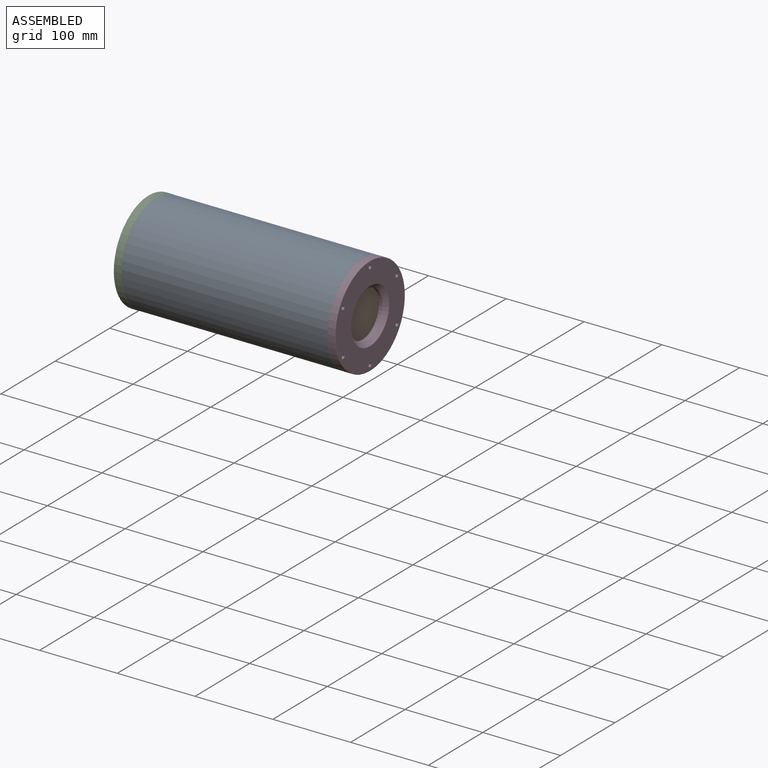
[diagram: assembled view]
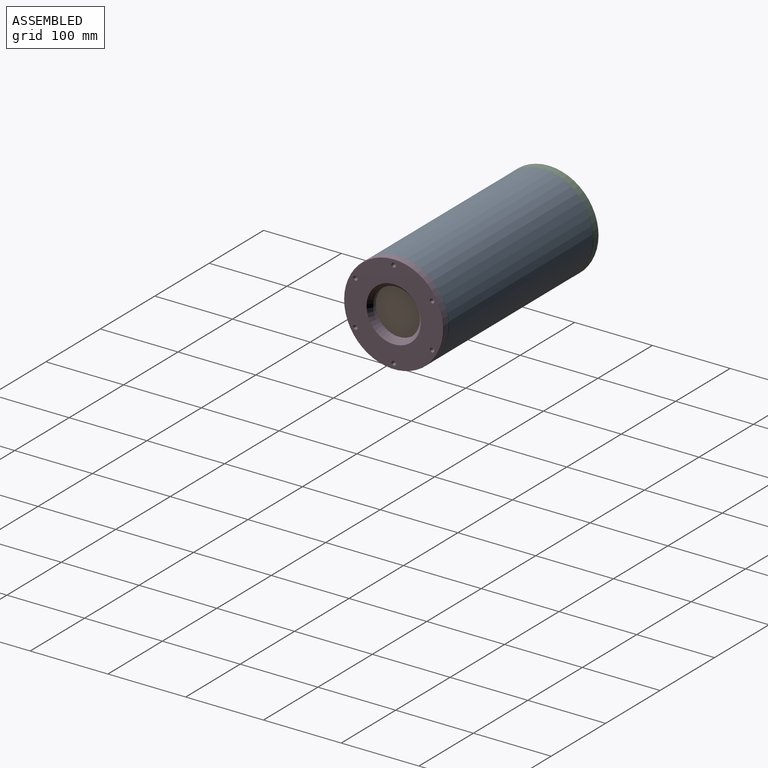
[diagram: assembled view, second angle]
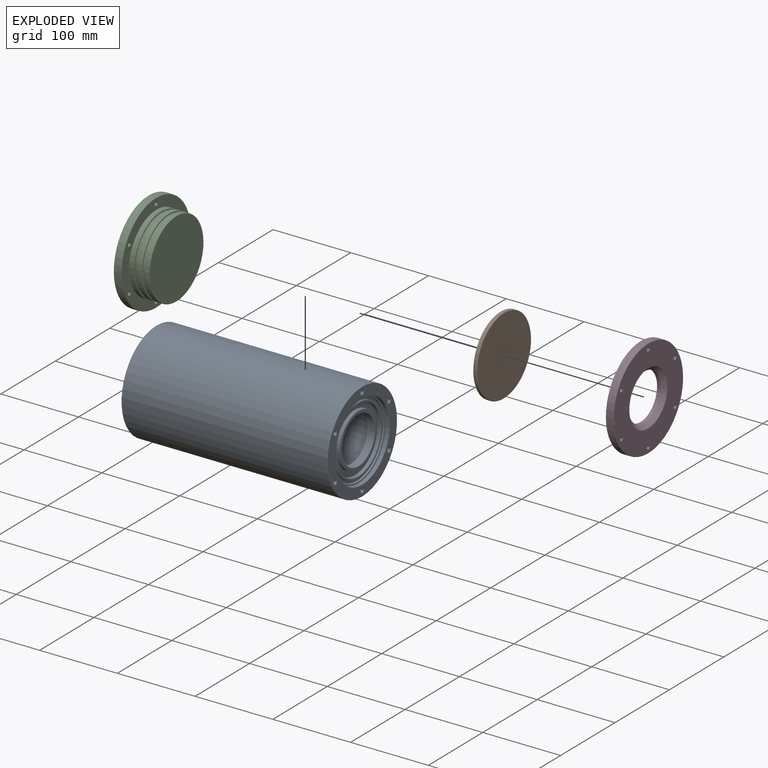
[diagram: exploded view]
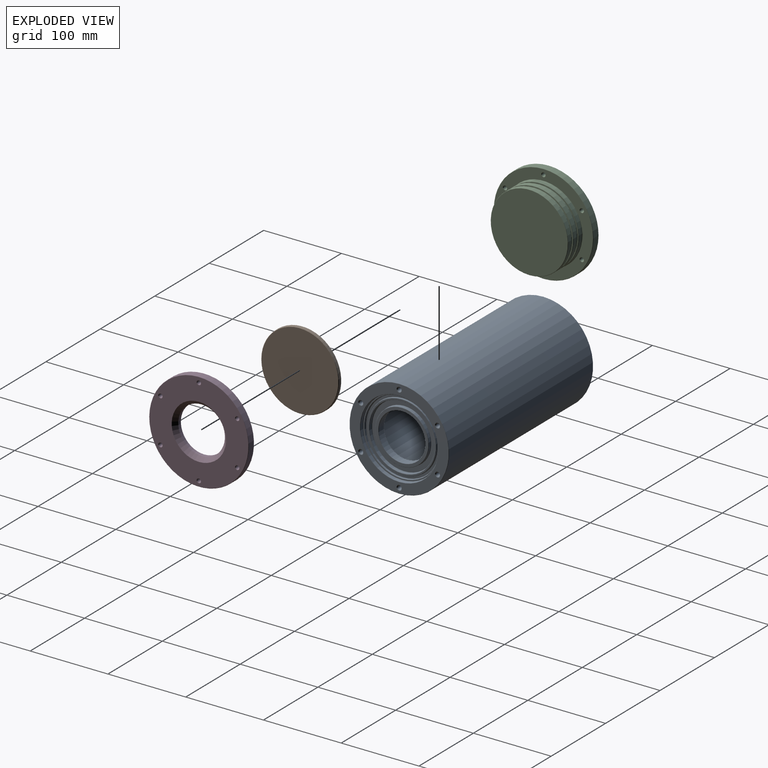
[diagram: exploded view, second angle]
ASSEMBLY  parts=4 mates=6
PART A: 70 faces, bbox 265x138.5x138.5 mm
  f0: cone r=2.25mm half-angle=45deg, axis (1,0,0), area 24.4mm2, adj f2,f42
  f1: cone r=0mm half-angle=59deg, axis (1,0,0), area 18.6mm2, adj f2
  f2: cylinder r=2.25mm len=11mm, axis (1,0,0), area 155.5mm2, adj f0,f1
  f3: cone r=2.25mm half-angle=45deg, axis (-1,0,0), area 24.4mm2, adj f5,f46
  f4: cone r=0mm half-angle=59deg, axis (-1,0,0), area 18.6mm2, adj f5
  f5: cylinder r=2.25mm len=11mm, axis (-1,0,0), area 155.5mm2, adj f3,f4
  f6: cone r=2.25mm half-angle=45deg, axis (1,0,0), area 24.4mm2, adj f8,f42
  f7: cone r=0mm half-angle=59deg, axis (1,0,0), area 18.6mm2, adj f8
  f8: cylinder r=2.25mm len=11mm, axis (1,0,0), area 155.5mm2, adj f6,f7
  f9: cone r=2.25mm half-angle=45deg, axis (-1,0,0), area 24.4mm2, adj f11,f46
  f10: cone r=0mm half-angle=59deg, axis (-1,0,0), area 18.6mm2, adj f11
  f11: cylinder r=2.25mm len=11mm, axis (-1,0,0), area 155.5mm2, adj f9,f10
  f12: cone r=2.25mm half-angle=45deg, axis (1,0,0), area 24.4mm2, adj f14,f42
  f13: cone r=0mm half-angle=59deg, axis (1,0,0), area 18.6mm2, adj f14
  f14: cylinder r=2.25mm len=11mm, axis (1,0,0), area 155.5mm2, adj f12,f13
  f15: cone r=2.25mm half-angle=45deg, axis (-1,0,0), area 24.4mm2, adj f17,f46
  f16: cone r=0mm half-angle=59deg, axis (-1,0,0), area 18.6mm2, adj f17
  f17: cylinder r=2.25mm len=11mm, axis (-1,0,0), area 155.5mm2, adj f15,f16
  f18: cone r=2.25mm half-angle=45deg, axis (1,0,0), area 24.4mm2, adj f20,f42
  f19: cone r=0mm half-angle=59deg, axis (1,0,0), area 18.6mm2, adj f20
  f20: cylinder r=2.25mm len=11mm, axis (1,0,0), area 155.5mm2, adj f18,f19
  f21: cone r=2.25mm half-angle=45deg, axis (-1,0,0), area 24.4mm2, adj f23,f46
  f22: cone r=0mm half-angle=59deg, axis (-1,0,0), area 18.6mm2, adj f23
  f23: cylinder r=2.25mm len=11mm, axis (-1,0,0), area 155.5mm2, adj f21,f22
  f24: cone r=2.25mm half-angle=45deg, axis (1,0,0), area 24.4mm2, adj f26,f42
  f25: cone r=0mm half-angle=59deg, axis (1,0,0), area 18.6mm2, adj f26
  f26: cylinder r=2.25mm len=11mm, axis (1,0,0), area 155.5mm2, adj f24,f25
  f27: cone r=2.25mm half-angle=45deg, axis (-1,0,0), area 24.4mm2, adj f29,f46
  f28: cone r=0mm half-angle=59deg, axis (-1,0,0), area 18.6mm2, adj f29
  f29: cylinder r=2.25mm len=11mm, axis (-1,0,0), area 155.5mm2, adj f27,f28
  f30: plane 87.6x87.6mm, normal (1,0,0), area 430.3mm2, adj f31,f63
  f31: torus R=43.8mm, axis (-1,0,0), area 173.9mm2, adj f30,f32
  f32: cylinder r=44.2mm len=88.4mm, axis (-1,0,0), area 361mm2, adj f31,f33
  f33: torus R=44.6mm, axis (-1,0,0), area 175.1mm2, adj f32,f34
  f34: plane 94.84x94.84mm, normal (1,0,0), area 815.4mm2, adj f33,f35
  f35: torus R=47.42mm, axis (-1,0,0), area 181.9mm2, adj f34,f36
  f36: cone r=47.89mm half-angle=3deg, axis (1,0,0), area 404mm2, adj f35,f37
  f37: torus R=48.29mm, axis (-1,0,0), area 183.3mm2, adj f36,f38
  f38: plane 99.2x99.2mm, normal (1,0,0), area 403mm2, adj f37,f39
  f39: torus R=49.6mm, axis (-1,0,0), area 196.8mm2, adj f38,f40
  f40: cylinder r=50mm len=100mm, axis (-1,0,0), area 1306.9mm2, adj f39,f41
  f41: torus R=50.4mm, axis (-1,0,0), area 198mm2, adj f40,f42
  f42: plane 127.2x127.2mm, normal (1,0,0), area 4528.4mm2, adj f0,f6,f12,f18,f24,f41,f43,f69
  f43: torus R=63.6mm, axis (-1,0,0), area 252.1mm2, adj f42,f44
  f44: cylinder r=64mm len=264.2mm, axis (-1,0,0), area 106241.1mm2, adj f43,f45
  f45: torus R=63.6mm, axis (-1,0,0), area 252.1mm2, adj f44,f46
  f46: plane 127.2x127.2mm, normal (-1,0,0), area 4387.5mm2, adj f3,f9,f15,f21,f27,f45,f47,f66
  f47: torus R=50.84mm, axis (-1,0,0), area 166.5mm2, adj f46,f48
  f48: cone r=50.46mm half-angle=15deg, axis (-1,0,0), area 540mm2, adj f47,f49
  f49: torus R=50.4mm, axis (-1,0,0), area 32.9mm2, adj f48,f50
  f50: cylinder r=50mm len=227.99mm, axis (-1,0,0), area 71624.3mm2, adj f49,f51
  f51: torus R=30mm, axis (-1,0,0), area 8435mm2, adj f50,f52
  f52: plane 60.8x60.8mm, normal (1,0,0), area 75.9mm2, adj f51,f53
  f53: torus R=30.4mm, axis (-1,0,0), area 119mm2, adj f52,f54
  f54: cylinder r=30mm len=60mm, axis (-1,0,0), area 1734.2mm2, adj f53,f55
  f55: torus R=30.4mm, axis (-1,0,0), area 119mm2, adj f54,f56
  f56: plane 68x68mm, normal (1,0,0), area 728.3mm2, adj f55,f57
  f57: torus R=34mm, axis (-1,0,0), area 135.2mm2, adj f56,f58
  f58: cylinder r=34.4mm len=68.8mm, axis (-1,0,0), area 767.3mm2, adj f57,f59
  f59: torus R=34.8mm, axis (-1,0,0), area 136.4mm2, adj f58,f60
  f60: plane 82.44x82.44mm, normal (1,0,0), area 1533.4mm2, adj f59,f61
  f61: torus R=41.22mm, axis (-1,0,0), area 158.3mm2, adj f60,f62
  f62: cone r=41.81mm half-angle=3deg, axis (1,0,0), area 942.7mm2, adj f61,f63
  f63: torus R=42.21mm, axis (-1,0,0), area 160.1mm2, adj f30,f62
  f64: cone r=0mm half-angle=59deg, axis (-1,0,0), area 18.6mm2, adj f65
  f65: cylinder r=2.25mm len=11mm, axis (-1,0,0), area 155.5mm2, adj f64,f66
  f66: cone r=2.25mm half-angle=45deg, axis (-1,0,0), area 24.4mm2, adj f46,f65
  f67: cone r=0mm half-angle=59deg, axis (1,0,0), area 18.6mm2, adj f68
  f68: cylinder r=2.25mm len=11mm, axis (1,0,0), area 155.5mm2, adj f67,f69
  f69: cone r=2.25mm half-angle=45deg, axis (1,0,0), area 24.4mm2, adj f42,f68
PART B: 5 faces, bbox 99.9x5x99.9 mm
  f0: cylinder r=49.95mm len=99.9mm, axis (0,1,0), area 1255.4mm2, adj f3,f4
  f1: plane 98.9x98.9mm, normal (0,-1,0), area 7682.1mm2, adj f4
  f2: plane 98.9x98.9mm, normal (0,1,0), area 7682.1mm2, adj f3
  f3: cone r=49.95mm half-angle=45deg, axis (0,-1,0), area 220.8mm2, adj f0,f2
  f4: cone r=49.45mm half-angle=45deg, axis (0,1,0), area 220.8mm2, adj f0,f1
PART C: 43 faces, bbox 36x138.5x138.5 mm
  f0: cone r=2.75mm half-angle=45deg, axis (-1,0,0), area 11.1mm2, adj f2,f25
  f1: cone r=2.25mm half-angle=45deg, axis (1,0,0), area 11.1mm2, adj f2,f21
  f2: cylinder r=2.25mm len=9mm, axis (-1,0,0), area 127.2mm2, adj f0,f1
  f3: cone r=2.75mm half-angle=45deg, axis (-1,0,0), area 11.1mm2, adj f5,f25
  f4: cone r=2.25mm half-angle=45deg, axis (1,0,0), area 11.1mm2, adj f5,f21
  f5: cylinder r=2.25mm len=9mm, axis (-1,0,0), area 127.2mm2, adj f3,f4
  f6: cone r=2.75mm half-angle=45deg, axis (-1,0,0), area 11.1mm2, adj f8,f25
  f7: cone r=2.25mm half-angle=45deg, axis (1,0,0), area 11.1mm2, adj f8,f21
  f8: cylinder r=2.25mm len=9mm, axis (-1,0,0), area 127.2mm2, adj f6,f7
  f9: cone r=2.75mm half-angle=45deg, axis (-1,0,0), area 11.1mm2, adj f11,f25
  f10: cone r=2.25mm half-angle=45deg, axis (1,0,0), area 11.1mm2, adj f11,f21
  f11: cylinder r=2.25mm len=9mm, axis (-1,0,0), area 127.2mm2, adj f9,f10
  f12: cone r=2.75mm half-angle=45deg, axis (-1,0,0), area 11.1mm2, adj f14,f25
  f13: cone r=2.25mm half-angle=45deg, axis (1,0,0), area 11.1mm2, adj f14,f21
  f14: cylinder r=2.25mm len=9mm, axis (-1,0,0), area 127.2mm2, adj f12,f13
  f15: cylinder r=47.8mm len=95.6mm, axis (1,0,0), area 790.2mm2, adj f16,f39
  f16: torus R=48.2mm, axis (1,0,0), area 182.9mm2, adj f15,f17
  f17: cone r=49.42mm half-angle=87deg, axis (-1,0,0), area 381.3mm2, adj f16,f18
  f18: torus R=49.4mm, axis (1,0,0), area 189.5mm2, adj f17,f19
  f19: cylinder r=49.8mm len=99.6mm, axis (1,0,0), area 1696.1mm2, adj f18,f20
  f20: torus R=50.2mm, axis (1,0,0), area 197.2mm2, adj f19,f21
  f21: plane 127.2x127.2mm, normal (1,0,0), area 4648.1mm2, adj f1,f4,f7,f10,f13,f20,f22,f41
  f22: torus R=63.6mm, axis (1,0,0), area 252.1mm2, adj f21,f23
  f23: cylinder r=64mm len=128mm, axis (1,0,0), area 3699.5mm2, adj f22,f24
  f24: torus R=63.6mm, axis (1,0,0), area 252.1mm2, adj f23,f25
  f25: plane 127.2x127.2mm, normal (-1,0,0), area 12565.1mm2, adj f0,f3,f6,f9,f12,f24,f42
  f26: plane 98.8x98.8mm, normal (1,0,0), area 7666.6mm2, adj f27
  f27: torus R=49.4mm, axis (1,0,0), area 196mm2, adj f26,f28
  f28: cylinder r=49.8mm len=99.6mm, axis (1,0,0), area 1696.1mm2, adj f27,f29
  f29: torus R=49.4mm, axis (1,0,0), area 189.5mm2, adj f28,f30
  f30: cone r=48.18mm half-angle=87deg, axis (1,0,0), area 381.3mm2, adj f29,f31
  f31: torus R=48.2mm, axis (1,0,0), area 182.9mm2, adj f30,f32
  f32: cylinder r=47.8mm len=95.6mm, axis (1,0,0), area 790.2mm2, adj f31,f33
  f33: torus R=48.2mm, axis (1,0,0), area 182.9mm2, adj f32,f34
  f34: cone r=49.42mm half-angle=87deg, axis (-1,0,0), area 381.3mm2, adj f33,f35
  f35: torus R=49.4mm, axis (1,0,0), area 189.5mm2, adj f34,f36
  f36: cylinder r=49.8mm len=99.6mm, axis (1,0,0), area 1765mm2, adj f35,f37
  f37: torus R=49.4mm, axis (1,0,0), area 189.5mm2, adj f36,f38
  f38: cone r=48.18mm half-angle=87deg, axis (1,0,0), area 381.3mm2, adj f37,f39
  f39: torus R=48.2mm, axis (1,0,0), area 182.9mm2, adj f15,f38
  f40: cylinder r=2.25mm len=9mm, axis (-1,0,0), area 127.2mm2, adj f41,f42
  f41: cone r=2.25mm half-angle=45deg, axis (1,0,0), area 11.1mm2, adj f21,f40
  f42: cone r=2.75mm half-angle=45deg, axis (-1,0,0), area 11.1mm2, adj f25,f40
PART D: 26 faces, bbox 138.5x10x138.5 mm
  f0: cone r=2.75mm half-angle=45deg, axis (0,1,0), area 11.1mm2, adj f2,f18
  f1: cone r=2.75mm half-angle=45deg, axis (0,-1,0), area 11.1mm2, adj f2,f17
  f2: cylinder r=2.25mm len=9mm, axis (0,1,0), area 127.2mm2, adj f0,f1
  f3: cone r=2.75mm half-angle=45deg, axis (0,1,0), area 11.1mm2, adj f5,f18
  f4: cone r=2.75mm half-angle=45deg, axis (0,-1,0), area 11.1mm2, adj f5,f17
  f5: cylinder r=2.25mm len=9mm, axis (0,1,0), area 127.2mm2, adj f3,f4
  f6: cone r=2.75mm half-angle=45deg, axis (0,1,0), area 11.1mm2, adj f8,f18
  f7: cone r=2.75mm half-angle=45deg, axis (0,-1,0), area 11.1mm2, adj f8,f17
  f8: cylinder r=2.25mm len=9mm, axis (0,1,0), area 127.2mm2, adj f6,f7
  f9: cone r=2.75mm half-angle=45deg, axis (0,1,0), area 11.1mm2, adj f11,f18
  f10: cone r=2.75mm half-angle=45deg, axis (0,-1,0), area 11.1mm2, adj f11,f17
  f11: cylinder r=2.25mm len=9mm, axis (0,1,0), area 127.2mm2, adj f9,f10
  f12: cone r=2.75mm half-angle=45deg, axis (0,1,0), area 11.1mm2, adj f14,f18
  f13: cone r=2.75mm half-angle=45deg, axis (0,-1,0), area 11.1mm2, adj f14,f17
  f14: cylinder r=2.25mm len=9mm, axis (0,1,0), area 127.2mm2, adj f12,f13
  f15: cylinder r=30mm len=60mm, axis (0,1,0), area 867.1mm2, adj f19,f20
  f16: cylinder r=64mm len=128mm, axis (0,1,0), area 3699.5mm2, adj f21,f22
  f17: plane 127.2x127.2mm, normal (0,-1,0), area 8716.6mm2, adj f1,f4,f7,f10,f13,f19,f22,f24
  f18: plane 127.2x127.2mm, normal (0,1,0), area 9661.7mm2, adj f0,f3,f6,f9,f12,f20,f21,f25
  f19: cone r=30mm half-angle=45deg, axis (0,-1,0), area 1443.9mm2, adj f15,f17
  f20: torus R=30.4mm, axis (0,-1,0), area 119mm2, adj f15,f18
  f21: torus R=63.6mm, axis (0,-1,0), area 252.1mm2, adj f16,f18
  f22: torus R=63.6mm, axis (0,-1,0), area 252.1mm2, adj f16,f17
  f23: cylinder r=2.25mm len=9mm, axis (0,1,0), area 127.2mm2, adj f24,f25
  f24: cone r=2.75mm half-angle=45deg, axis (0,-1,0), area 11.1mm2, adj f17,f23
  f25: cone r=2.75mm half-angle=45deg, axis (0,1,0), area 11.1mm2, adj f18,f23
PLACE A at identity fixed
PLACE B rot(axis=(-0.58,0.58,0.58),120deg) t=(260.04,0,0)mm
PLACE C t=(-10,0,0)mm
PLACE D rot(axis=(-0.65,0.65,0.38),138.6deg) t=(265,0,0)mm
MATE planar C.f15 <-> A.f64  axis (1,0,0) through (0,0,0)mm
MATE planar D.f23 <-> A.f6  axis (-1,0,0) through (265,49.36,-28.5)mm
MATE cylindrical A.f6 <-> D.f23  axis (1,0,0) through (264,49.36,-28.5)mm
MATE planar B.f0 <-> A.f31  axis (-1,0,0) through (260.04,0,0)mm
MATE cylindrical A.f31 <-> C.f15  axis (-1,0,0) through (132.5,0,0)mm
MATE cylindrical A.f31 <-> D.f16  axis (-1,0,0) through (132.5,0,0)mm
